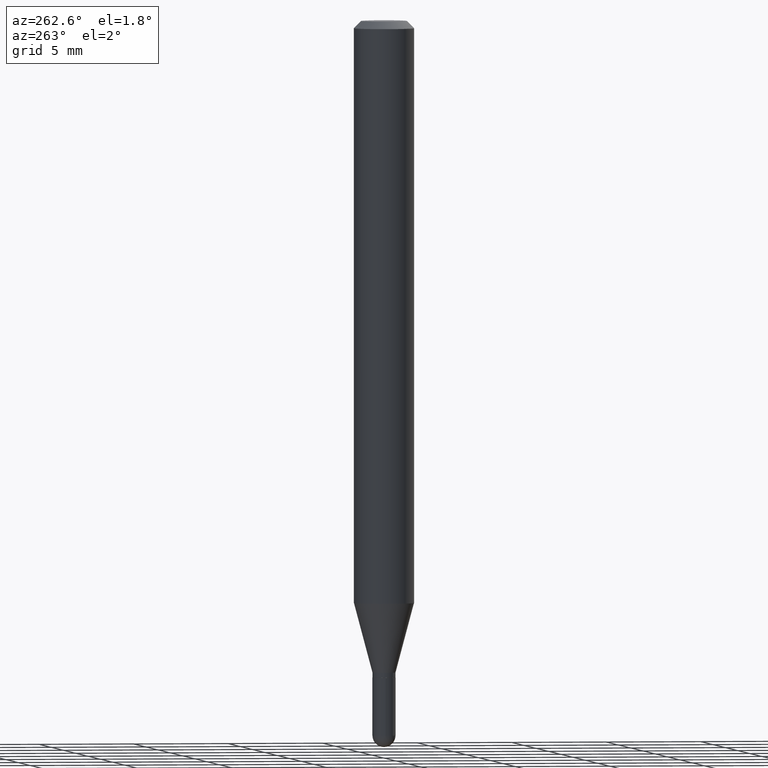
[diagram: clean part render]
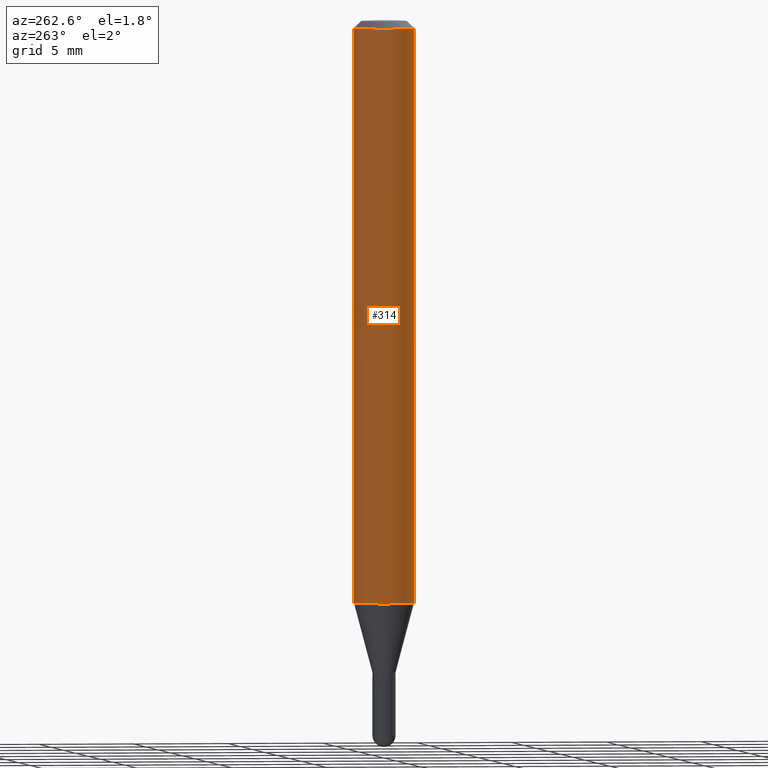
[diagram: same view with one face highlighted and labeled with its STEP entity id]
A machine part, auxiliary view. The second image highlights one B-rep face of the part: STEP entity #314.
In plain terms, the highlighted cylindrical surface (edge-blend (fillet) strip) has radius 1.5875 mm, axis along (-0, 0, 1).
Its self-contained STEP definition (entity closure, byte-faithful):
#1 = LINE ( 'NONE', #390, #440 ) ;
#3 = LINE ( 'NONE', #154, #249 ) ;
#12 = AXIS2_PLACEMENT_3D ( 'NONE', #313, #437, #152 ) ;
#71 = VERTEX_POINT ( 'NONE', #251 ) ;
#94 = DIRECTION ( 'NONE',  ( -6.982962677686265922E-15, -1.000000000000000000, 3.483106191921935554E-15 ) ) ;
#118 = CARTESIAN_POINT ( 'NONE',  ( -4.364351673553912750E-16, -0.06250000000000005551, -0.01499999999999979128 ) ) ;
#123 = AXIS2_PLACEMENT_3D ( 'NONE', #259, #134, #346 ) ;
#134 = DIRECTION ( 'NONE',  ( -2.445477235489228020E-29, 3.491469267599920324E-15, 1.000000000000000000 ) ) ;
#140 = ORIENTED_EDGE ( 'NONE', *, *, #213, .T. ) ;
#152 = DIRECTION ( 'NONE',  ( -6.982962677686265922E-15, -1.000000000000000000, 3.491469267599920324E-15 ) ) ;
#154 = CARTESIAN_POINT ( 'NONE',  ( 4.440892098500625669E-16, 0.06250000000000000000, -2.182168292249950203E-16 ) ) ;
#161 = EDGE_CURVE ( 'NONE', #71, #510, #469, .T. ) ;
#213 = EDGE_CURVE ( 'NONE', #474, #506, #296, .T. ) ;
#224 = ORIENTED_EDGE ( 'NONE', *, *, #373, .T. ) ;
#242 = DIRECTION ( 'NONE',  ( -2.445477235489228300E-29, 3.491469267599920324E-15, 1.000000000000000000 ) ) ;
#248 = AXIS2_PLACEMENT_3D ( 'NONE', #375, #424, #94 ) ;
#249 = VECTOR ( 'NONE', #284, 39.37007874015748143 ) ;
#251 = CARTESIAN_POINT ( 'NONE',  ( 4.440892098500920998E-16, 0.06249999999999993755, -0.01500000000000022669 ) ) ;
#259 = CARTESIAN_POINT ( 'NONE',  ( 2.940236515241945390E-29, -4.197849517249188631E-15, -1.202316043908598697 ) ) ;
#284 = DIRECTION ( 'NONE',  ( -2.445477235489228300E-29, 3.491469267599920324E-15, 1.000000000000000000 ) ) ;
#296 = CIRCLE ( 'NONE', #123, 0.06250000000000000000 ) ;
#313 = CARTESIAN_POINT ( 'NONE',  ( 0.000000000000000000, 0.000000000000000000, 0.000000000000000000 ) ) ;
#314 = ADVANCED_FACE ( 'NONE', ( #464 ), #322, .T. ) ;
#319 = EDGE_LOOP ( 'NONE', ( #428, #140, #224, #465 ) ) ;
#322 = CYLINDRICAL_SURFACE ( 'NONE', #12, 0.06250000000000000000 ) ;
#324 = CARTESIAN_POINT ( 'NONE',  ( -4.364351673553623829E-16, -0.06250000000000421885, -1.202316043908598253 ) ) ;
#346 = DIRECTION ( 'NONE',  ( -6.982962677686265922E-15, -1.000000000000000000, 4.370956789862821150E-15 ) ) ;
#362 = CARTESIAN_POINT ( 'NONE',  ( 4.440892098500918040E-16, 0.06249999999999577421, -1.202316043908598919 ) ) ;
#373 = EDGE_CURVE ( 'NONE', #506, #510, #1, .T. ) ;
#375 = CARTESIAN_POINT ( 'NONE',  ( 3.668215853233844657E-31, -5.237203901399883839E-17, -0.01500000000000000812 ) ) ;
#390 = CARTESIAN_POINT ( 'NONE',  ( -4.364351673553916201E-16, -0.06250000000000000000, 2.182168292249950203E-16 ) ) ;
#424 = DIRECTION ( 'NONE',  ( -2.445477235489228020E-29, 3.491469267599920324E-15, 1.000000000000000000 ) ) ;
#428 = ORIENTED_EDGE ( 'NONE', *, *, #476, .F. ) ;
#437 = DIRECTION ( 'NONE',  ( -2.445477235489228020E-29, 3.491469267599920324E-15, 1.000000000000000000 ) ) ;
#440 = VECTOR ( 'NONE', #242, 39.37007874015748143 ) ;
#464 = FACE_OUTER_BOUND ( 'NONE', #319, .T. ) ;
#465 = ORIENTED_EDGE ( 'NONE', *, *, #161, .F. ) ;
#469 = CIRCLE ( 'NONE', #248, 0.06250000000000000000 ) ;
#474 = VERTEX_POINT ( 'NONE', #362 ) ;
#476 = EDGE_CURVE ( 'NONE', #474, #71, #3, .T. ) ;
#506 = VERTEX_POINT ( 'NONE', #324 ) ;
#510 = VERTEX_POINT ( 'NONE', #118 ) ;